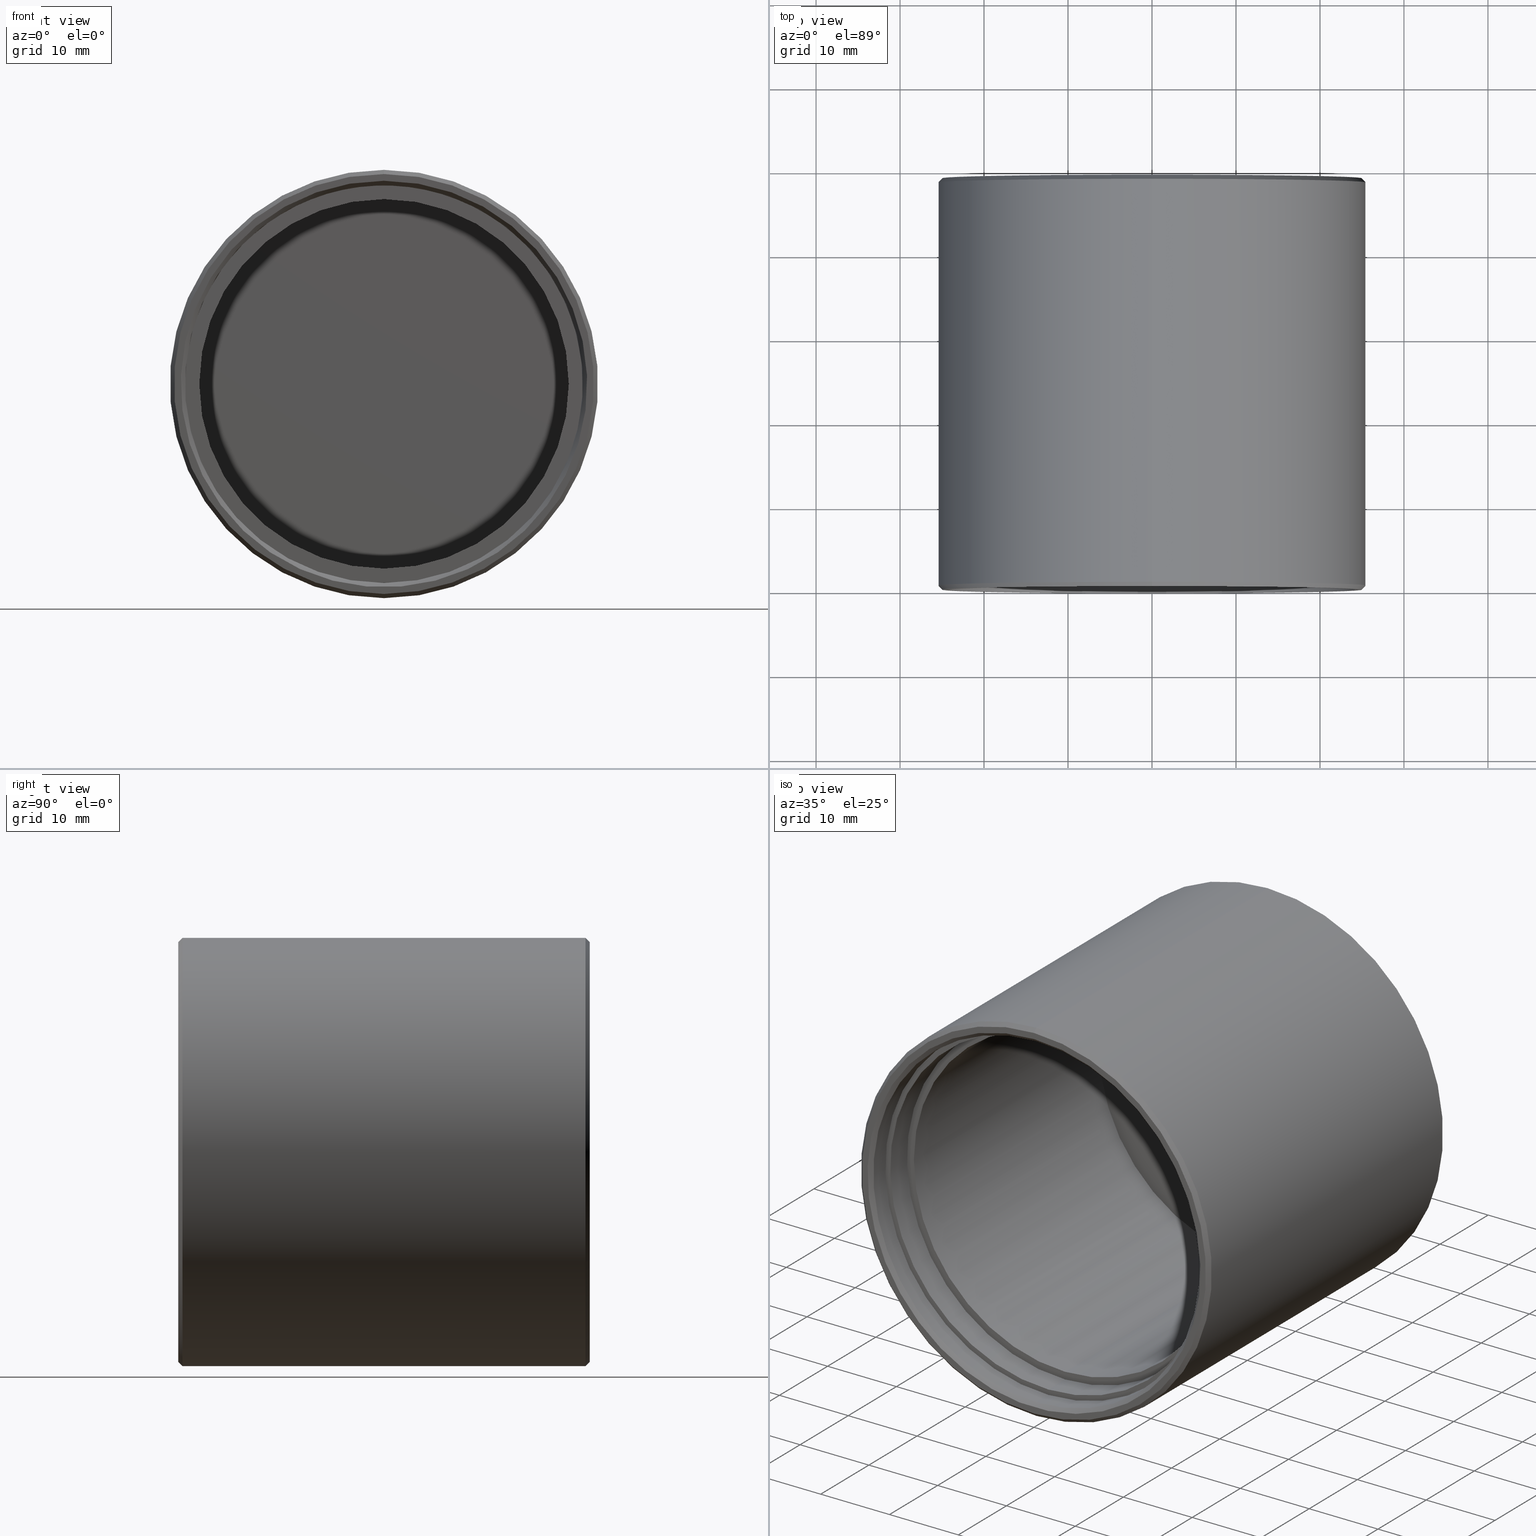
[diagram: canonical four-view strip — front | top / right | iso, engineering-drawing reading convention]
A machine part, canonical four-view strip (front | top / right | iso — engineering-drawing reading convention). The complete STEP part file that produces these views, byte-faithful:
ISO-10303-21;
HEADER;
FILE_DESCRIPTION (( 'STEP AP203' ),
    '1' );
FILE_NAME ('670037.STEP',
    '2025-05-23T04:11:03',
    ( 'Windows User' ),
    ( 'P R C' ),
    'SwSTEP 2.0',
    'SolidWorks 2020',
    '' );
FILE_SCHEMA (( 'CONFIG_CONTROL_DESIGN' ));
ENDSEC;

DATA;
#1 = FACE_OUTER_BOUND ( 'NONE', #253, .T. ) ;
#2 = EDGE_CURVE ( 'NONE', #170, #170, #212, .T. ) ;
#3 = FACE_OUTER_BOUND ( 'NONE', #332, .T. ) ;
#4 = DIRECTION ( 'NONE',  ( 1.000000000000000000, 0.000000000000000000, 0.000000000000000000 ) ) ;
#5 = DIRECTION ( 'NONE',  ( 0.000000000000000000, -1.000000000000000000, 0.000000000000000000 ) ) ;
#6 = AXIS2_PLACEMENT_3D ( 'NONE', #104, #107, #225 ) ;
#7 = AXIS2_PLACEMENT_3D ( 'NONE', #82, #135, #25 ) ;
#8 = DATE_AND_TIME ( #246, #64 ) ;
#9 = ORIENTED_EDGE ( 'NONE', *, *, #142, .F. ) ;
#10 = CC_DESIGN_DATE_AND_TIME_ASSIGNMENT ( #8, #123, ( #176 ) ) ;
#11 = APPROVAL_STATUS ( 'not_yet_approved' ) ;
#12 = EDGE_LOOP ( 'NONE', ( #328 ) ) ;
#13 = CIRCLE ( 'NONE', #62, 23.00000000000000000 ) ;
#14 = ORIENTED_EDGE ( 'NONE', *, *, #360, .F. ) ;
#15 = APPROVAL_ROLE ( '' ) ;
#16 = CYLINDRICAL_SURFACE ( 'NONE', #148, 25.50000000000000000 ) ;
#17 = ADVANCED_FACE ( 'NONE', ( #133, #287 ), #369, .F. ) ;
#18 = DIRECTION ( 'NONE',  ( 0.000000000000000000, 0.000000000000000000, -1.000000000000000000 ) ) ;
#19 = AXIS2_PLACEMENT_3D ( 'NONE', #206, #50, #24 ) ;
#20 = FACE_OUTER_BOUND ( 'NONE', #222, .T. ) ;
#21 = CARTESIAN_POINT ( 'NONE',  ( 0.000000000000000000, 0.000000000000000000, 24.20000000000000639 ) ) ;
#22 = DIRECTION ( 'NONE',  ( 0.000000000000000000, -0.000000000000000000, 1.000000000000000000 ) ) ;
#23 = CARTESIAN_POINT ( 'NONE',  ( 0.000000000000000000, 48.25597280529908062, 22.75000000000000711 ) ) ;
#24 = DIRECTION ( 'NONE',  ( 0.000000000000000000, 0.000000000000000000, 1.000000000000000000 ) ) ;
#25 = DIRECTION ( 'NONE',  ( 0.000000000000000000, 0.000000000000000000, -1.000000000000000000 ) ) ;
#26 = AXIS2_PLACEMENT_3D ( 'NONE', #338, #201, #168 ) ;
#27 = DIRECTION ( 'NONE',  ( -0.000000000000000000, 1.000000000000000000, -0.000000000000000000 ) ) ;
#28 = DIRECTION ( 'NONE',  ( 0.000000000000000000, 0.000000000000000000, 1.000000000000000000 ) ) ;
#29 =( NAMED_UNIT ( * ) PLANE_ANGLE_UNIT ( ) SI_UNIT ( $, .RADIAN. ) );
#30 = CARTESIAN_POINT ( 'NONE',  ( 0.000000000000000000, 50.98000000000000398, 0.000000000000000000 ) ) ;
#31 = DIRECTION ( 'NONE',  ( 0.000000000000000000, 0.000000000000000000, 1.000000000000000000 ) ) ;
#32 = CIRCLE ( 'NONE', #264, 22.00000000000000000 ) ;
#33 = DIRECTION ( 'NONE',  ( 0.000000000000000000, 1.000000000000000000, 0.000000000000000000 ) ) ;
#34 = CC_DESIGN_SECURITY_CLASSIFICATION ( #176, ( #214 ) ) ;
#35 = ADVANCED_FACE ( 'NONE', ( #254, #71 ), #234, .T. ) ;
#36 = EDGE_LOOP ( 'NONE', ( #186 ) ) ;
#37 = CONICAL_SURFACE ( 'NONE', #175, 23.70000000000000284, 0.7853981633974482790 ) ;
#38 = EDGE_LOOP ( 'NONE', ( #300 ) ) ;
#39 = APPLICATION_PROTOCOL_DEFINITION ( 'international standard', 'config_control_design', 1994, #248 ) ;
#40 = EDGE_LOOP ( 'NONE', ( #152 ) ) ;
#41 = CC_DESIGN_PERSON_AND_ORGANIZATION_ASSIGNMENT ( #273, #227, ( #98 ) ) ;
#42 = DIRECTION ( 'NONE',  ( 0.000000000000000000, 0.000000000000000000, -1.000000000000000000 ) ) ;
#43 = VERTEX_POINT ( 'NONE', #164 ) ;
#44 = COORDINATED_UNIVERSAL_TIME_OFFSET ( 8, 0, .AHEAD. ) ;
#45 = DIRECTION ( 'NONE',  ( 0.000000000000000000, 0.000000000000000000, 1.000000000000000000 ) ) ;
#46 = FACE_OUTER_BOUND ( 'NONE', #334, .T. ) ;
#47 = AXIS2_PLACEMENT_3D ( 'NONE', #195, #341, #45 ) ;
#48 = UNCERTAINTY_MEASURE_WITH_UNIT (LENGTH_MEASURE( 1.000000000000000082E-05 ), #56, 'distance_accuracy_value', 'NONE');
#49 = DIRECTION ( 'NONE',  ( 0.000000000000000000, -1.000000000000000000, 0.000000000000000000 ) ) ;
#50 = DIRECTION ( 'NONE',  ( 0.000000000000000000, 1.000000000000000000, 0.000000000000000000 ) ) ;
#51 = PRODUCT_DEFINITION_SHAPE ( 'NONE', 'NONE',  #98 ) ;
#52 = CYLINDRICAL_SURFACE ( 'NONE', #7, 23.70000000000000284 ) ;
#53 = AXIS2_PLACEMENT_3D ( 'NONE', #76, #166, #171 ) ;
#54 = DIRECTION ( 'NONE',  ( -0.000000000000000000, 1.000000000000000000, -0.000000000000000000 ) ) ;
#55 = CC_DESIGN_PERSON_AND_ORGANIZATION_ASSIGNMENT ( #200, #280, ( #176 ) ) ;
#56 =( LENGTH_UNIT ( ) NAMED_UNIT ( * ) SI_UNIT ( .MILLI., .METRE. ) );
#57 = FACE_OUTER_BOUND ( 'NONE', #268, .T. ) ;
#58 = CYLINDRICAL_SURFACE ( 'NONE', #72, 22.00000000000000000 ) ;
#59 = ADVANCED_FACE ( 'NONE', ( #46, #335 ), #125, .T. ) ;
#60 = CIRCLE ( 'NONE', #47, 25.50000000000000000 ) ;
#61 = EDGE_LOOP ( 'NONE', ( #297 ) ) ;
#62 = AXIS2_PLACEMENT_3D ( 'NONE', #86, #375, #114 ) ;
#63 = EDGE_LOOP ( 'NONE', ( #354 ) ) ;
#64 = LOCAL_TIME ( 12, 11, 3.000000000000000000, #155 ) ;
#65 = ADVANCED_FACE ( 'NONE', ( #130, #373 ), #345, .F. ) ;
#66 = APPROVAL_ROLE ( '' ) ;
#67 = EDGE_LOOP ( 'NONE', ( #339 ) ) ;
#68 = PERSON_AND_ORGANIZATION ( #90, #365 ) ;
#69 = ORIENTED_EDGE ( 'NONE', *, *, #2, .F. ) ;
#70 = PRODUCT_RELATED_PRODUCT_CATEGORY ( 'detail', '', ( #284 ) ) ;
#71 = FACE_OUTER_BOUND ( 'NONE', #247, .T. ) ;
#72 = AXIS2_PLACEMENT_3D ( 'NONE', #151, #182, #179 ) ;
#73 = DIRECTION ( 'NONE',  ( 0.000000000000000000, 0.000000000000000000, 1.000000000000000000 ) ) ;
#74 = COORDINATED_UNIVERSAL_TIME_OFFSET ( 8, 0, .AHEAD. ) ;
#75 = DIRECTION ( 'NONE',  ( 0.000000000000000000, -1.000000000000000000, 0.000000000000000000 ) ) ;
#76 = CARTESIAN_POINT ( 'NONE',  ( 0.000000000000000000, 0.000000000000000000, 0.000000000000000000 ) ) ;
#77 = EDGE_CURVE ( 'NONE', #286, #286, #32, .T. ) ;
#78 = AXIS2_PLACEMENT_3D ( 'NONE', #319, #5, #263 ) ;
#79 = LOCAL_TIME ( 12, 11, 3.000000000000000000, #74 ) ;
#80 = CARTESIAN_POINT ( 'NONE',  ( 0.000000000000000000, 48.49999999999999289, 0.000000000000000000 ) ) ;
#81 = CARTESIAN_POINT ( 'NONE',  ( 0.000000000000000000, 0.000000000000000000, 0.000000000000000000 ) ) ;
#82 = CARTESIAN_POINT ( 'NONE',  ( 0.000000000000000000, 3.000000000000000000, 0.000000000000000000 ) ) ;
#83 = DIRECTION ( 'NONE',  ( -0.000000000000000000, -1.000000000000000000, -0.000000000000000000 ) ) ;
#84 = CARTESIAN_POINT ( 'NONE',  ( 0.000000000000000000, 48.49999999999999289, 25.50000000000000000 ) ) ;
#85 = ADVANCED_FACE ( 'NONE', ( #256, #366 ), #109, .F. ) ;
#86 = CARTESIAN_POINT ( 'NONE',  ( 0.000000000000000000, 6.479999999999999538, 0.000000000000000000 ) ) ;
#87 = PLANE ( 'NONE',  #364 ) ;
#88 = FACE_OUTER_BOUND ( 'NONE', #276, .T. ) ;
#89 = FACE_BOUND ( 'NONE', #61, .T. ) ;
#90 = PERSON ( 'δָ��', 'δָ��', 'δָ��', ('δָ��'), ('δָ��'), ('δָ��') ) ;
#91 = AXIS2_PLACEMENT_3D ( 'NONE', #101, #281, #141 ) ;
#92 = EDGE_LOOP ( 'NONE', ( #120 ) ) ;
#93 = ORIENTED_EDGE ( 'NONE', *, *, #134, .T. ) ;
#94 = COORDINATED_UNIVERSAL_TIME_OFFSET ( 8, 0, .AHEAD. ) ;
#95 = ORIENTED_EDGE ( 'NONE', *, *, #150, .F. ) ;
#96 = AXIS2_PLACEMENT_3D ( 'NONE', #80, #105, #205 ) ;
#97 = DATE_TIME_ROLE ( 'creation_date' ) ;
#98 = PRODUCT_DEFINITION ( 'δ֪', '', #214, #138 ) ;
#99 = ORIENTED_EDGE ( 'NONE', *, *, #353, .F. ) ;
#100 = PERSON_AND_ORGANIZATION_ROLE ( 'design_owner' ) ;
#101 = CARTESIAN_POINT ( 'NONE',  ( 0.000000000000000000, 49.00000000000000000, 0.000000000000000000 ) ) ;
#102 = CARTESIAN_POINT ( 'NONE',  ( 0.000000000000000000, 44.97999999999999687, -22.00000000000000000 ) ) ;
#103 = PERSON_AND_ORGANIZATION ( #90, #365 ) ;
#104 = CARTESIAN_POINT ( 'NONE',  ( 0.000000000000000000, 0.000000000000000000, 0.000000000000000000 ) ) ;
#105 = DIRECTION ( 'NONE',  ( 0.000000000000000000, -1.000000000000000000, 0.000000000000000000 ) ) ;
#106 = CC_DESIGN_DATE_AND_TIME_ASSIGNMENT ( #223, #97, ( #98 ) ) ;
#107 = DIRECTION ( 'NONE',  ( 0.000000000000000000, 1.000000000000000000, 0.000000000000000000 ) ) ;
#108 = CARTESIAN_POINT ( 'NONE',  ( 0.000000000000000000, 47.98000000000000398, 22.75000000000000711 ) ) ;
#109 = CYLINDRICAL_SURFACE ( 'NONE', #153, 23.00000000000000000 ) ;
#110 = CARTESIAN_POINT ( 'NONE',  ( 0.000000000000000000, 49.00000000000000000, 25.00000000000000000 ) ) ;
#111 = DIRECTION ( 'NONE',  ( 0.000000000000000000, -1.000000000000000000, 0.000000000000000000 ) ) ;
#112 = ADVANCED_FACE ( 'NONE', ( #279, #228 ), #16, .T. ) ;
#113 = VERTEX_POINT ( 'NONE', #84 ) ;
#114 = DIRECTION ( 'NONE',  ( 0.000000000000000000, 0.000000000000000000, -1.000000000000000000 ) ) ;
#115 = DIRECTION ( 'NONE',  ( 0.000000000000000000, 0.000000000000000000, -1.000000000000000000 ) ) ;
#116 = DIRECTION ( 'NONE',  ( 0.000000000000000000, -1.000000000000000000, 0.000000000000000000 ) ) ;
#117 = DIRECTION ( 'NONE',  ( 0.000000000000000000, 0.000000000000000000, -1.000000000000000000 ) ) ;
#118 = EDGE_CURVE ( 'NONE', #255, #255, #60, .T. ) ;
#119 = AXIS2_PLACEMENT_3D ( 'NONE', #174, #116, #267 ) ;
#120 = ORIENTED_EDGE ( 'NONE', *, *, #370, .F. ) ;
#121 = EDGE_CURVE ( 'NONE', #140, #140, #203, .T. ) ;
#122 = EDGE_LOOP ( 'NONE', ( #274 ) ) ;
#123 = DATE_TIME_ROLE ( 'classification_date' ) ;
#124 = ORIENTED_EDGE ( 'NONE', *, *, #241, .F. ) ;
#125 = CONICAL_SURFACE ( 'NONE', #91, 25.00000000000000000, 0.7853981633974380649 ) ;
#126 = EDGE_LOOP ( 'NONE', ( #69 ) ) ;
#127 = APPROVAL_STATUS ( 'not_yet_approved' ) ;
#128 = ORIENTED_EDGE ( 'NONE', *, *, #303, .T. ) ;
#129 = DATE_AND_TIME ( #331, #184 ) ;
#130 = FACE_OUTER_BOUND ( 'NONE', #327, .T. ) ;
#131 = VERTEX_POINT ( 'NONE', #340 ) ;
#132 = PERSON_AND_ORGANIZATION ( #90, #365 ) ;
#133 = FACE_BOUND ( 'NONE', #38, .T. ) ;
#134 = EDGE_CURVE ( 'NONE', #371, #371, #330, .T. ) ;
#135 = DIRECTION ( 'NONE',  ( -0.000000000000000000, -1.000000000000000000, -0.000000000000000000 ) ) ;
#136 = DIRECTION ( 'NONE',  ( 0.000000000000000000, 0.000000000000000000, -1.000000000000000000 ) ) ;
#137 = CARTESIAN_POINT ( 'NONE',  ( 0.000000000000000000, 0.5000000000000004441, 25.50000000000000000 ) ) ;
#138 = DESIGN_CONTEXT ( 'detailed design', #248, 'design' ) ;
#139 = DIRECTION ( 'NONE',  ( 0.000000000000000000, 1.000000000000000000, 0.000000000000000000 ) ) ;
#140 = VERTEX_POINT ( 'NONE', #21 ) ;
#141 = DIRECTION ( 'NONE',  ( 0.000000000000000000, 0.000000000000000000, -1.000000000000000000 ) ) ;
#142 = EDGE_CURVE ( 'NONE', #235, #235, #299, .T. ) ;
#143 = APPLICATION_CONTEXT ( 'configuration controlled 3d designs of mechanical parts and assemblies' ) ;
#144 = CARTESIAN_POINT ( 'NONE',  ( 0.000000000000000000, 3.000000000000000000, -23.70000000000000284 ) ) ;
#145 = PLANE ( 'NONE',  #78 ) ;
#146 = CARTESIAN_POINT ( 'NONE',  ( 0.000000000000000000, 6.479999999999999538, 0.000000000000000000 ) ) ;
#147 = CARTESIAN_POINT ( 'NONE',  ( 0.000000000000000000, 47.98000000000000398, 0.000000000000000000 ) ) ;
#148 = AXIS2_PLACEMENT_3D ( 'NONE', #306, #231, #18 ) ;
#149 =( GEOMETRIC_REPRESENTATION_CONTEXT ( 3 ) GLOBAL_UNCERTAINTY_ASSIGNED_CONTEXT ( ( #48 ) ) GLOBAL_UNIT_ASSIGNED_CONTEXT ( ( #56, #29, #187 ) ) REPRESENTATION_CONTEXT ( 'NONE', 'WORKASPACE' ) );
#150 = EDGE_CURVE ( 'NONE', #368, #368, #244, .T. ) ;
#151 = CARTESIAN_POINT ( 'NONE',  ( 0.000000000000000000, 44.97999999999999687, 0.000000000000000000 ) ) ;
#152 = ORIENTED_EDGE ( 'NONE', *, *, #77, .T. ) ;
#153 = AXIS2_PLACEMENT_3D ( 'NONE', #251, #198, #136 ) ;
#154 = CC_DESIGN_APPROVAL ( #342, ( #214 ) ) ;
#155 = COORDINATED_UNIVERSAL_TIME_OFFSET ( 8, 0, .AHEAD. ) ;
#156 = ORIENTED_EDGE ( 'NONE', *, *, #303, .F. ) ;
#157 = APPROVAL_DATE_TIME ( #356, #342 ) ;
#158 = EDGE_LOOP ( 'NONE', ( #93 ) ) ;
#159 = CC_DESIGN_PERSON_AND_ORGANIZATION_ASSIGNMENT ( #162, #333, ( #214 ) ) ;
#160 = DATE_AND_TIME ( #301, #169 ) ;
#161 = ORIENTED_EDGE ( 'NONE', *, *, #326, .T. ) ;
#162 = PERSON_AND_ORGANIZATION ( #90, #365 ) ;
#163 = FACE_OUTER_BOUND ( 'NONE', #40, .T. ) ;
#164 = CARTESIAN_POINT ( 'NONE',  ( 0.000000000000000000, 3.000000000000000000, -23.00000000000000000 ) ) ;
#165 = PERSON_AND_ORGANIZATION ( #90, #365 ) ;
#166 = DIRECTION ( 'NONE',  ( -0.000000000000000000, -1.000000000000000000, -0.000000000000000000 ) ) ;
#167 = DIRECTION ( 'NONE',  ( 0.000000000000000000, 0.000000000000000000, -1.000000000000000000 ) ) ;
#168 = DIRECTION ( 'NONE',  ( 0.000000000000000000, 0.000000000000000000, 1.000000000000000000 ) ) ;
#169 = LOCAL_TIME ( 12, 11, 3.000000000000000000, #218 ) ;
#170 = VERTEX_POINT ( 'NONE', #23 ) ;
#171 = DIRECTION ( 'NONE',  ( 0.000000000000000000, 0.000000000000000000, 1.000000000000000000 ) ) ;
#172 = ADVANCED_FACE ( 'NONE', ( #20, #258 ), #37, .F. ) ;
#173 = CARTESIAN_POINT ( 'NONE',  ( 0.000000000000000000, 49.00000000000000000, 0.000000000000000000 ) ) ;
#174 = CARTESIAN_POINT ( 'NONE',  ( 0.000000000000000000, 6.479999999999999538, 0.000000000000000000 ) ) ;
#175 = AXIS2_PLACEMENT_3D ( 'NONE', #367, #111, #42 ) ;
#176 = SECURITY_CLASSIFICATION ( '', '', #275 ) ;
#177 = FACE_BOUND ( 'NONE', #12, .T. ) ;
#178 = ADVANCED_BREP_SHAPE_REPRESENTATION ( '670037', ( #329, #196 ), #149 ) ;
#179 = DIRECTION ( 'NONE',  ( 0.000000000000000000, 0.000000000000000000, -1.000000000000000000 ) ) ;
#180 = CARTESIAN_POINT ( 'NONE',  ( 0.000000000000000000, 0.000000000000000000, 0.000000000000000000 ) ) ;
#181 = ADVANCED_FACE ( 'NONE', ( #163 ), #87, .F. ) ;
#182 = DIRECTION ( 'NONE',  ( -0.000000000000000000, -1.000000000000000000, -0.000000000000000000 ) ) ;
#183 = AXIS2_PLACEMENT_3D ( 'NONE', #81, #229, #310 ) ;
#184 = LOCAL_TIME ( 12, 11, 3.000000000000000000, #94 ) ;
#185 = APPROVAL ( #127, 'δָ��' ) ;
#186 = ORIENTED_EDGE ( 'NONE', *, *, #250, .T. ) ;
#187 =( NAMED_UNIT ( * ) SI_UNIT ( $, .STERADIAN. ) SOLID_ANGLE_UNIT ( ) );
#188 = ORIENTED_EDGE ( 'NONE', *, *, #77, .F. ) ;
#189 = EDGE_LOOP ( 'NONE', ( #156 ) ) ;
#190 = APPROVAL_DATE_TIME ( #129, #324 ) ;
#191 = EDGE_LOOP ( 'NONE', ( #14 ) ) ;
#192 = PERSON_AND_ORGANIZATION_ROLE ( 'creator' ) ;
#193 = EDGE_LOOP ( 'NONE', ( #95 ) ) ;
#194 = AXIS2_PLACEMENT_3D ( 'NONE', #146, #262, #115 ) ;
#195 = CARTESIAN_POINT ( 'NONE',  ( 0.000000000000000000, 0.5000000000000004441, 0.000000000000000000 ) ) ;
#196 = AXIS2_PLACEMENT_3D ( 'NONE', #180, #31, #4 ) ;
#197 = ADVANCED_FACE ( 'NONE', ( #209, #1 ), #145, .T. ) ;
#198 = DIRECTION ( 'NONE',  ( -0.000000000000000000, -1.000000000000000000, -0.000000000000000000 ) ) ;
#199 = DIRECTION ( 'NONE',  ( 0.000000000000000000, -1.000000000000000000, 0.000000000000000000 ) ) ;
#200 = PERSON_AND_ORGANIZATION ( #90, #365 ) ;
#201 = DIRECTION ( 'NONE',  ( -0.000000000000000000, -1.000000000000000000, -0.000000000000000000 ) ) ;
#202 = EDGE_LOOP ( 'NONE', ( #305 ) ) ;
#203 = CIRCLE ( 'NONE', #183, 24.20000000000000639 ) ;
#204 = APPROVAL_PERSON_ORGANIZATION ( #68, #324, #242 ) ;
#205 = DIRECTION ( 'NONE',  ( 0.000000000000000000, 0.000000000000000000, 1.000000000000000000 ) ) ;
#206 = CARTESIAN_POINT ( 'NONE',  ( 0.000000000000000000, 49.00000000000000000, 0.000000000000000000 ) ) ;
#207 = CARTESIAN_POINT ( 'NONE',  ( 0.000000000000000000, 0.000000000000000000, 25.00000000000000000 ) ) ;
#208 = FACE_OUTER_BOUND ( 'NONE', #67, .T. ) ;
#209 = FACE_BOUND ( 'NONE', #92, .T. ) ;
#210 = FACE_OUTER_BOUND ( 'NONE', #126, .T. ) ;
#211 = CARTESIAN_POINT ( 'NONE',  ( 0.000000000000000000, 44.97999999999999687, 0.000000000000000000 ) ) ;
#212 = CIRCLE ( 'NONE', #320, 22.75000000000000711 ) ;
#213 = ADVANCED_FACE ( 'NONE', ( #177, #88 ), #269, .T. ) ;
#214 = PRODUCT_DEFINITION_FORMATION_WITH_SPECIFIED_SOURCE ( '�κ�', '', #284, .NOT_KNOWN. ) ;
#215 = ORIENTED_EDGE ( 'NONE', *, *, #353, .T. ) ;
#216 = AXIS2_PLACEMENT_3D ( 'NONE', #30, #83, #344 ) ;
#217 = APPROVAL_PERSON_ORGANIZATION ( #103, #185, #15 ) ;
#218 = COORDINATED_UNIVERSAL_TIME_OFFSET ( 8, 0, .AHEAD. ) ;
#219 = ORIENTED_EDGE ( 'NONE', *, *, #150, .T. ) ;
#220 = CC_DESIGN_PERSON_AND_ORGANIZATION_ASSIGNMENT ( #165, #192, ( #214 ) ) ;
#221 = CALENDAR_DATE ( 2025, 23, 5 ) ;
#222 = EDGE_LOOP ( 'NONE', ( #224 ) ) ;
#223 = DATE_AND_TIME ( #221, #265 ) ;
#224 = ORIENTED_EDGE ( 'NONE', *, *, #121, .F. ) ;
#225 = DIRECTION ( 'NONE',  ( 0.000000000000000000, -0.000000000000000000, 1.000000000000000000 ) ) ;
#226 = VERTEX_POINT ( 'NONE', #307 ) ;
#227 = PERSON_AND_ORGANIZATION_ROLE ( 'creator' ) ;
#228 = FACE_OUTER_BOUND ( 'NONE', #359, .T. ) ;
#229 = DIRECTION ( 'NONE',  ( 0.000000000000000000, 1.000000000000000000, 0.000000000000000000 ) ) ;
#230 = CARTESIAN_POINT ( 'NONE',  ( 0.000000000000000000, 6.479999999999999538, -23.00000000000000000 ) ) ;
#231 = DIRECTION ( 'NONE',  ( -0.000000000000000000, -1.000000000000000000, -0.000000000000000000 ) ) ;
#232 = AXIS2_PLACEMENT_3D ( 'NONE', #147, #350, #322 ) ;
#233 = VERTEX_POINT ( 'NONE', #144 ) ;
#234 = PLANE ( 'NONE',  #325 ) ;
#235 = VERTEX_POINT ( 'NONE', #110 ) ;
#236 = CARTESIAN_POINT ( 'NONE',  ( 0.000000000000000000, 0.5000000000000004441, 0.000000000000000000 ) ) ;
#237 = FACE_OUTER_BOUND ( 'NONE', #193, .T. ) ;
#238 = PLANE ( 'NONE',  #232 ) ;
#239 = CIRCLE ( 'NONE', #292, 23.70000000000000284 ) ;
#240 = EDGE_LOOP ( 'NONE', ( #298 ) ) ;
#241 = EDGE_CURVE ( 'NONE', #290, #290, #13, .T. ) ;
#242 = APPROVAL_ROLE ( '' ) ;
#243 = EDGE_LOOP ( 'NONE', ( #124 ) ) ;
#244 = CIRCLE ( 'NONE', #26, 22.75000000000000711 ) ;
#245 = CIRCLE ( 'NONE', #372, 23.00000000000000000 ) ;
#246 = CALENDAR_DATE ( 2025, 23, 5 ) ;
#247 = EDGE_LOOP ( 'NONE', ( #355 ) ) ;
#248 = APPLICATION_CONTEXT ( 'configuration controlled 3d designs of mechanical parts and assemblies' ) ;
#249 = APPROVAL_DATE_TIME ( #160, #185 ) ;
#250 = EDGE_CURVE ( 'NONE', #131, #131, #282, .T. ) ;
#251 = CARTESIAN_POINT ( 'NONE',  ( 0.000000000000000000, 6.479999999999999538, 0.000000000000000000 ) ) ;
#252 = CLOSED_SHELL ( 'NONE', ( #272, #112, #35, #17, #337, #197, #85, #311, #285, #172, #213, #59, #65, #181, #278 ) ) ;
#253 = EDGE_LOOP ( 'NONE', ( #128 ) ) ;
#254 = FACE_BOUND ( 'NONE', #63, .T. ) ;
#255 = VERTEX_POINT ( 'NONE', #137 ) ;
#256 = FACE_OUTER_BOUND ( 'NONE', #243, .T. ) ;
#257 = DIRECTION ( 'NONE',  ( 0.000000000000000000, 0.000000000000000000, 1.000000000000000000 ) ) ;
#258 = FACE_BOUND ( 'NONE', #191, .T. ) ;
#259 = CARTESIAN_POINT ( 'NONE',  ( 0.000000000000000000, 49.00000000000000000, 24.55226501531731387 ) ) ;
#260 = DIRECTION ( 'NONE',  ( 0.000000000000000000, -1.000000000000000000, 0.000000000000000000 ) ) ;
#261 = CC_DESIGN_PERSON_AND_ORGANIZATION_ASSIGNMENT ( #132, #100, ( #284 ) ) ;
#262 = DIRECTION ( 'NONE',  ( 0.000000000000000000, -1.000000000000000000, 0.000000000000000000 ) ) ;
#263 = DIRECTION ( 'NONE',  ( 0.000000000000000000, -0.000000000000000000, -1.000000000000000000 ) ) ;
#264 = AXIS2_PLACEMENT_3D ( 'NONE', #309, #49, #283 ) ;
#265 = LOCAL_TIME ( 12, 11, 3.000000000000000000, #44 ) ;
#266 = MECHANICAL_CONTEXT ( 'NONE', #143, 'mechanical' ) ;
#267 = DIRECTION ( 'NONE',  ( 0.000000000000000000, -0.000000000000000000, -1.000000000000000000 ) ) ;
#268 = EDGE_LOOP ( 'NONE', ( #219 ) ) ;
#269 = CONICAL_SURFACE ( 'NONE', #351, 25.50000000000000000, 0.7853981633974447263 ) ;
#270 = CC_DESIGN_APPROVAL ( #324, ( #176 ) ) ;
#271 = EDGE_LOOP ( 'NONE', ( #9 ) ) ;
#272 = ADVANCED_FACE ( 'NONE', ( #57, #210 ), #296, .F. ) ;
#273 = PERSON_AND_ORGANIZATION ( #90, #365 ) ;
#274 = ORIENTED_EDGE ( 'NONE', *, *, #370, .T. ) ;
#275 = SECURITY_CLASSIFICATION_LEVEL ( 'unclassified' ) ;
#276 = EDGE_LOOP ( 'NONE', ( #357 ) ) ;
#277 = CIRCLE ( 'NONE', #314, 24.55226501531731387 ) ;
#278 = ADVANCED_FACE ( 'NONE', ( #237 ), #238, .T. ) ;
#279 = FACE_OUTER_BOUND ( 'NONE', #202, .T. ) ;
#280 = PERSON_AND_ORGANIZATION_ROLE ( 'classification_officer' ) ;
#281 = DIRECTION ( 'NONE',  ( 0.000000000000000000, -1.000000000000000000, 0.000000000000000000 ) ) ;
#282 = CIRCLE ( 'NONE', #194, 22.00000000000000000 ) ;
#283 = DIRECTION ( 'NONE',  ( 0.000000000000000000, 0.000000000000000000, -1.000000000000000000 ) ) ;
#284 = PRODUCT ( '670037', '670037', '', ( #266 ) ) ;
#285 = ADVANCED_FACE ( 'NONE', ( #346, #323 ), #58, .F. ) ;
#286 = VERTEX_POINT ( 'NONE', #102 ) ;
#287 = FACE_OUTER_BOUND ( 'NONE', #158, .T. ) ;
#288 = DIRECTION ( 'NONE',  ( 0.000000000000000000, -1.000000000000000000, 0.000000000000000000 ) ) ;
#289 = CARTESIAN_POINT ( 'NONE',  ( 0.000000000000000000, 48.20798920880806548, 0.000000000000000000 ) ) ;
#290 = VERTEX_POINT ( 'NONE', #230 ) ;
#291 = PLANE ( 'NONE',  #119 ) ;
#292 = AXIS2_PLACEMENT_3D ( 'NONE', #294, #260, #117 ) ;
#293 = DIRECTION ( 'NONE',  ( 0.000000000000000000, -0.000000000000000000, 1.000000000000000000 ) ) ;
#294 = CARTESIAN_POINT ( 'NONE',  ( 0.000000000000000000, 3.000000000000000000, 0.000000000000000000 ) ) ;
#295 = APPLICATION_PROTOCOL_DEFINITION ( 'international standard', 'config_control_design', 1994, #143 ) ;
#296 = CYLINDRICAL_SURFACE ( 'NONE', #216, 22.75000000000000711 ) ;
#297 = ORIENTED_EDGE ( 'NONE', *, *, #250, .F. ) ;
#298 = ORIENTED_EDGE ( 'NONE', *, *, #2, .T. ) ;
#299 = CIRCLE ( 'NONE', #19, 25.00000000000000000 ) ;
#300 = ORIENTED_EDGE ( 'NONE', *, *, #121, .T. ) ;
#301 = CALENDAR_DATE ( 2025, 23, 5 ) ;
#302 = ORIENTED_EDGE ( 'NONE', *, *, #241, .T. ) ;
#303 = EDGE_CURVE ( 'NONE', #233, #233, #239, .T. ) ;
#304 = APPROVAL_STATUS ( 'not_yet_approved' ) ;
#305 = ORIENTED_EDGE ( 'NONE', *, *, #118, .T. ) ;
#306 = CARTESIAN_POINT ( 'NONE',  ( 0.000000000000000000, 49.00000000000000000, 0.000000000000000000 ) ) ;
#307 = CARTESIAN_POINT ( 'NONE',  ( 0.000000000000000000, 0.5000000000000038858, 23.70000000000000284 ) ) ;
#308 = SHAPE_DEFINITION_REPRESENTATION ( #51, #178 ) ;
#309 = CARTESIAN_POINT ( 'NONE',  ( 0.000000000000000000, 44.97999999999999687, 0.000000000000000000 ) ) ;
#310 = DIRECTION ( 'NONE',  ( 0.000000000000000000, 0.000000000000000000, 1.000000000000000000 ) ) ;
#311 = ADVANCED_FACE ( 'NONE', ( #89, #3 ), #291, .T. ) ;
#312 = CARTESIAN_POINT ( 'NONE',  ( 0.000000000000000000, 3.000000000000000000, 0.000000000000000000 ) ) ;
#313 = AXIS2_PLACEMENT_3D ( 'NONE', #289, #315, #73 ) ;
#314 = AXIS2_PLACEMENT_3D ( 'NONE', #349, #27, #343 ) ;
#315 = DIRECTION ( 'NONE',  ( -0.000000000000000000, 1.000000000000000000, -0.000000000000000000 ) ) ;
#316 = CARTESIAN_POINT ( 'NONE',  ( 0.000000000000000000, 0.5000000000000038858, 0.000000000000000000 ) ) ;
#317 = DIRECTION ( 'NONE',  ( 0.000000000000000000, 0.000000000000000000, 1.000000000000000000 ) ) ;
#318 = FACE_OUTER_BOUND ( 'NONE', #189, .T. ) ;
#319 = CARTESIAN_POINT ( 'NONE',  ( 0.000000000000000000, 3.000000000000000000, 0.000000000000000000 ) ) ;
#320 = AXIS2_PLACEMENT_3D ( 'NONE', #363, #75, #317 ) ;
#321 = CC_DESIGN_APPROVAL ( #185, ( #98 ) ) ;
#322 = DIRECTION ( 'NONE',  ( 0.000000000000000000, -0.000000000000000000, 1.000000000000000000 ) ) ;
#323 = FACE_OUTER_BOUND ( 'NONE', #36, .T. ) ;
#324 = APPROVAL ( #11, 'δָ��' ) ;
#325 = AXIS2_PLACEMENT_3D ( 'NONE', #173, #139, #22 ) ;
#326 = EDGE_CURVE ( 'NONE', #374, #374, #277, .T. ) ;
#327 = EDGE_LOOP ( 'NONE', ( #161 ) ) ;
#328 = ORIENTED_EDGE ( 'NONE', *, *, #134, .F. ) ;
#329 = MANIFOLD_SOLID_BREP ( '͹̨-����2', #252 ) ;
#330 = CIRCLE ( 'NONE', #53, 25.00000000000000000 ) ;
#331 = CALENDAR_DATE ( 2025, 23, 5 ) ;
#332 = EDGE_LOOP ( 'NONE', ( #302 ) ) ;
#333 = PERSON_AND_ORGANIZATION_ROLE ( 'design_supplier' ) ;
#334 = EDGE_LOOP ( 'NONE', ( #99 ) ) ;
#335 = FACE_BOUND ( 'NONE', #271, .T. ) ;
#336 = PERSON_AND_ORGANIZATION ( #90, #365 ) ;
#337 = ADVANCED_FACE ( 'NONE', ( #208, #318 ), #52, .F. ) ;
#338 = CARTESIAN_POINT ( 'NONE',  ( 0.000000000000000000, 47.98000000000000398, 0.000000000000000000 ) ) ;
#339 = ORIENTED_EDGE ( 'NONE', *, *, #360, .T. ) ;
#340 = CARTESIAN_POINT ( 'NONE',  ( 0.000000000000000000, 6.479999999999999538, -22.00000000000000000 ) ) ;
#341 = DIRECTION ( 'NONE',  ( -0.000000000000000000, 1.000000000000000000, -0.000000000000000000 ) ) ;
#342 = APPROVAL ( #304, 'δָ��' ) ;
#343 = DIRECTION ( 'NONE',  ( 0.000000000000000000, 0.000000000000000000, 1.000000000000000000 ) ) ;
#344 = DIRECTION ( 'NONE',  ( 0.000000000000000000, 0.000000000000000000, -1.000000000000000000 ) ) ;
#345 = CONICAL_SURFACE ( 'NONE', #313, 22.63376882205279372, 1.179279654102563191 ) ;
#346 = FACE_OUTER_BOUND ( 'NONE', #361, .T. ) ;
#347 = AXIS2_PLACEMENT_3D ( 'NONE', #316, #288, #257 ) ;
#348 = CIRCLE ( 'NONE', #347, 23.70000000000000284 ) ;
#349 = CARTESIAN_POINT ( 'NONE',  ( 0.000000000000000000, 49.00000000000000000, 0.000000000000000000 ) ) ;
#350 = DIRECTION ( 'NONE',  ( 0.000000000000000000, 1.000000000000000000, 0.000000000000000000 ) ) ;
#351 = AXIS2_PLACEMENT_3D ( 'NONE', #236, #54, #28 ) ;
#352 = CIRCLE ( 'NONE', #96, 25.50000000000000000 ) ;
#353 = EDGE_CURVE ( 'NONE', #113, #113, #352, .T. ) ;
#354 = ORIENTED_EDGE ( 'NONE', *, *, #326, .F. ) ;
#355 = ORIENTED_EDGE ( 'NONE', *, *, #142, .T. ) ;
#356 = DATE_AND_TIME ( #362, #79 ) ;
#357 = ORIENTED_EDGE ( 'NONE', *, *, #118, .F. ) ;
#358 = APPROVAL_PERSON_ORGANIZATION ( #336, #342, #66 ) ;
#359 = EDGE_LOOP ( 'NONE', ( #215 ) ) ;
#360 = EDGE_CURVE ( 'NONE', #226, #226, #348, .T. ) ;
#361 = EDGE_LOOP ( 'NONE', ( #188 ) ) ;
#362 = CALENDAR_DATE ( 2025, 23, 5 ) ;
#363 = CARTESIAN_POINT ( 'NONE',  ( 0.000000000000000000, 48.25597280529908062, 0.000000000000000000 ) ) ;
#364 = AXIS2_PLACEMENT_3D ( 'NONE', #211, #33, #293 ) ;
#365 = ORGANIZATION ( 'δָ��', 'δָ��', '' ) ;
#366 = FACE_OUTER_BOUND ( 'NONE', #122, .T. ) ;
#367 = CARTESIAN_POINT ( 'NONE',  ( 0.000000000000000000, 0.5000000000000038858, 0.000000000000000000 ) ) ;
#368 = VERTEX_POINT ( 'NONE', #108 ) ;
#369 = PLANE ( 'NONE',  #6 ) ;
#370 = EDGE_CURVE ( 'NONE', #43, #43, #245, .T. ) ;
#371 = VERTEX_POINT ( 'NONE', #207 ) ;
#372 = AXIS2_PLACEMENT_3D ( 'NONE', #312, #199, #167 ) ;
#373 = FACE_BOUND ( 'NONE', #240, .T. ) ;
#374 = VERTEX_POINT ( 'NONE', #259 ) ;
#375 = DIRECTION ( 'NONE',  ( 0.000000000000000000, -1.000000000000000000, 0.000000000000000000 ) ) ;
ENDSEC;
END-ISO-10303-21;
